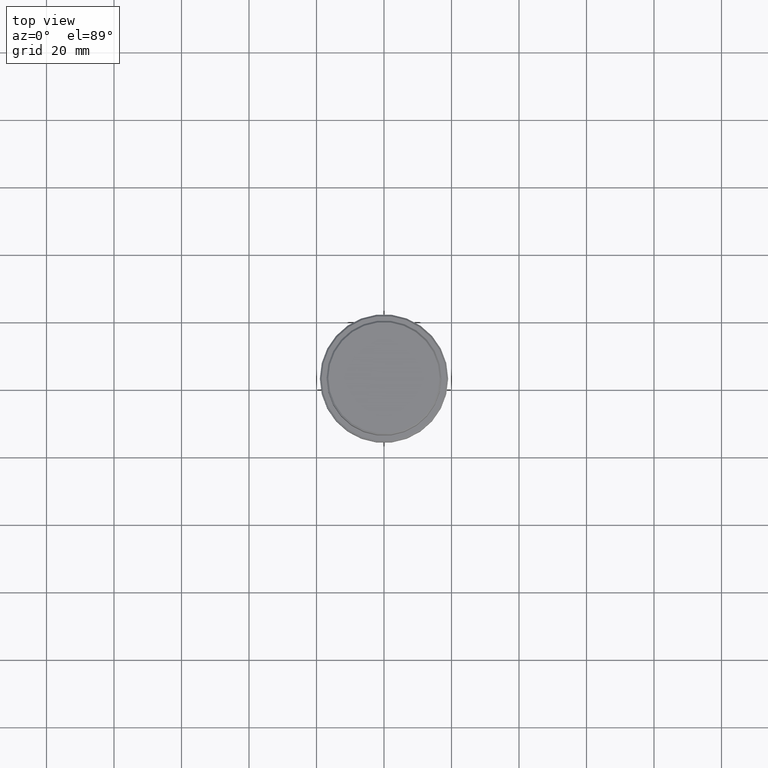
[diagram: clean part render]
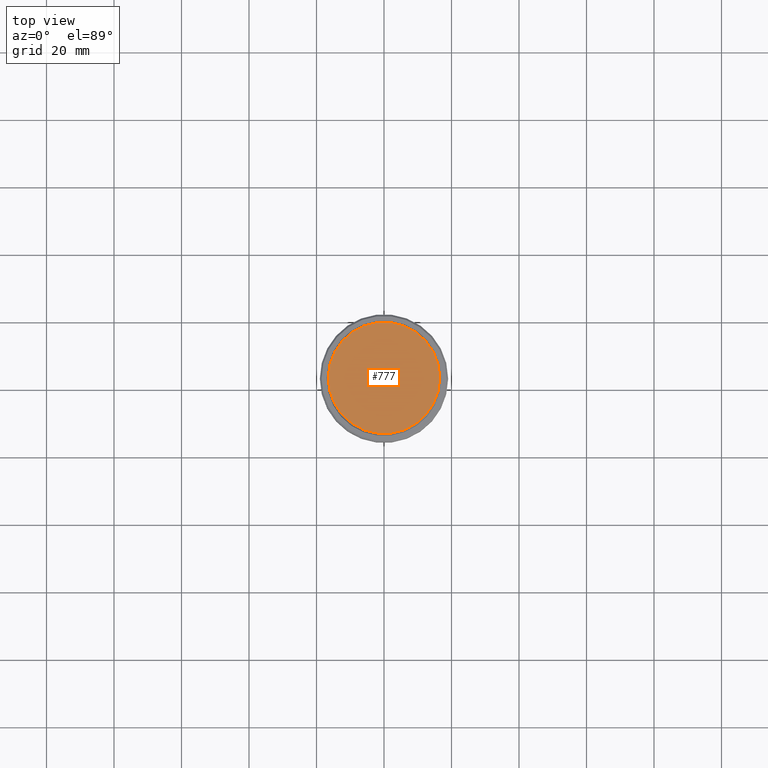
[diagram: same view with one face highlighted and labeled with its STEP entity id]
A machine part, top view. The second image highlights one B-rep face of the part: STEP entity #777.
In plain terms, the highlighted planar face has unit normal (0, -0, 1).
Its self-contained STEP definition (entity closure, byte-faithful):
#4 = DIRECTION ( 'NONE',  ( 0.000000000000000000, -0.000000000000000000, 1.000000000000000000 ) ) ;
#29 = VERTEX_POINT ( 'NONE', #889 ) ;
#131 = CIRCLE ( 'NONE', #447, 16.50000000000001421 ) ;
#253 = FACE_OUTER_BOUND ( 'NONE', #1028, .T. ) ;
#314 = DIRECTION ( 'NONE',  ( -0.000000000000000000, -0.000000000000000000, 1.000000000000000000 ) ) ;
#402 = VERTEX_POINT ( 'NONE', #1376 ) ;
#446 = PLANE ( 'NONE',  #1135 ) ;
#447 = AXIS2_PLACEMENT_3D ( 'NONE', #1007, #724, #807 ) ;
#630 = CARTESIAN_POINT ( 'NONE',  ( 0.000000000000000000, 0.000000000000000000, 0.000000000000000000 ) ) ;
#658 = DIRECTION ( 'NONE',  ( 1.000000000000000000, 0.000000000000000000, 0.000000000000000000 ) ) ;
#724 = DIRECTION ( 'NONE',  ( -0.000000000000000000, -0.000000000000000000, 1.000000000000000000 ) ) ;
#777 = ADVANCED_FACE ( 'NONE', ( #253 ), #446, .T. ) ;
#786 = ORIENTED_EDGE ( 'NONE', *, *, #939, .T. ) ;
#807 = DIRECTION ( 'NONE',  ( 1.000000000000000000, 0.000000000000000000, 0.000000000000000000 ) ) ;
#889 = CARTESIAN_POINT ( 'NONE',  ( 16.50000000000001421, 2.051283388571816887E-15, 0.000000000000000000 ) ) ;
#935 = AXIS2_PLACEMENT_3D ( 'NONE', #630, #314, #1401 ) ;
#939 = EDGE_CURVE ( 'NONE', #402, #29, #131, .T. ) ;
#972 = CARTESIAN_POINT ( 'NONE',  ( 0.000000000000000000, 0.000000000000000000, 0.000000000000000000 ) ) ;
#1007 = CARTESIAN_POINT ( 'NONE',  ( 0.000000000000000000, 0.000000000000000000, 0.000000000000000000 ) ) ;
#1028 = EDGE_LOOP ( 'NONE', ( #786, #1173 ) ) ;
#1135 = AXIS2_PLACEMENT_3D ( 'NONE', #972, #4, #658 ) ;
#1173 = ORIENTED_EDGE ( 'NONE', *, *, #1377, .T. ) ;
#1376 = CARTESIAN_POINT ( 'NONE',  ( -16.50000000000001421, 0.000000000000000000, 0.000000000000000000 ) ) ;
#1377 = EDGE_CURVE ( 'NONE', #29, #402, #1378, .T. ) ;
#1378 = CIRCLE ( 'NONE', #935, 16.50000000000001421 ) ;
#1401 = DIRECTION ( 'NONE',  ( 1.000000000000000000, 0.000000000000000000, 0.000000000000000000 ) ) ;